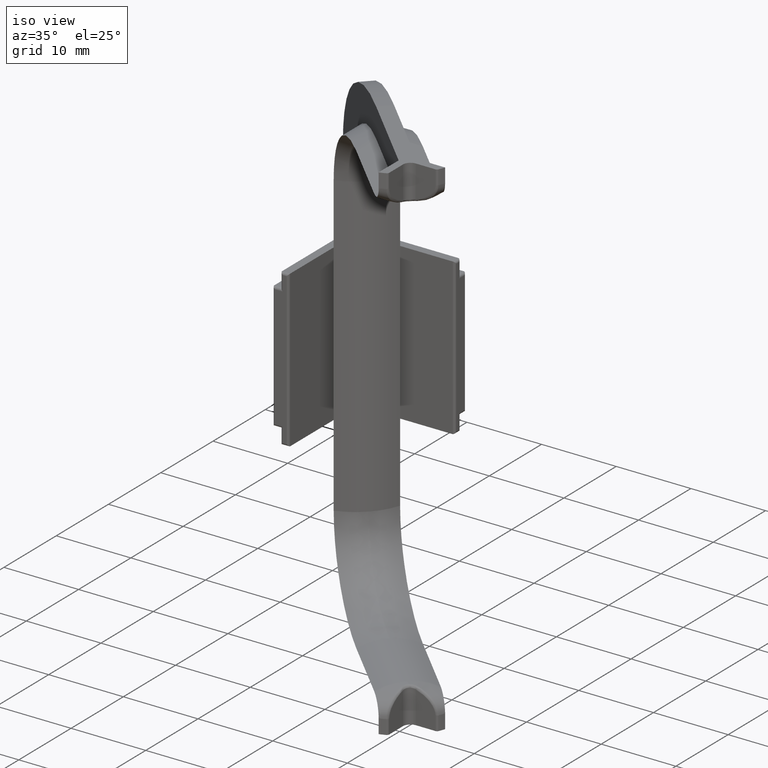
[diagram: clean part render]
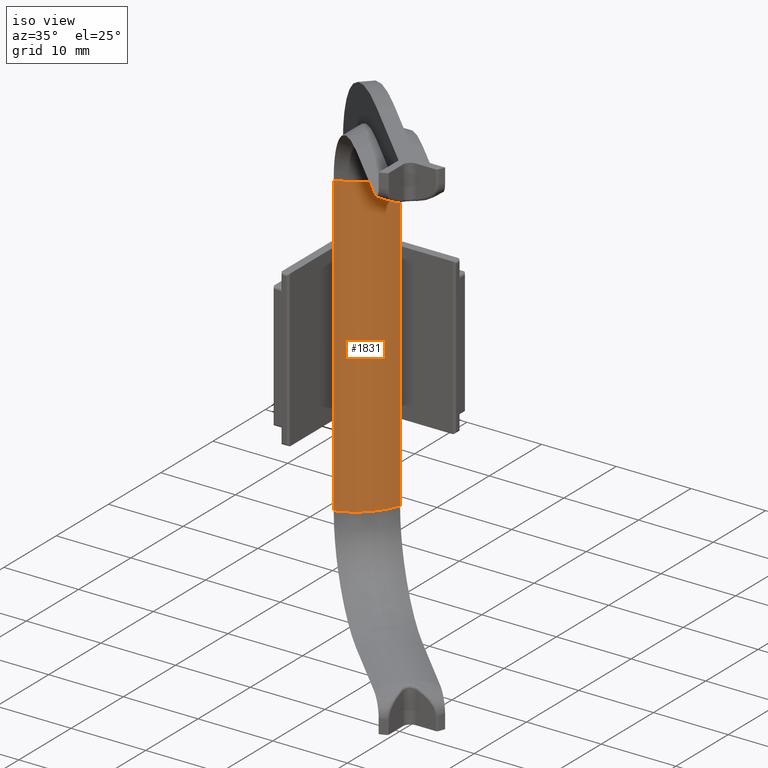
[diagram: same view with one face highlighted and labeled with its STEP entity id]
A machine part, iso view. The second image highlights one B-rep face of the part: STEP entity #1831.
In plain terms, the highlighted cylindrical surface (partial cylindrical patch) has radius 8 mm, axis along (0, 0, -1).
Its self-contained STEP definition (entity closure, byte-faithful):
#258=FACE_OUTER_BOUND('',#367,.T.);
#367=EDGE_LOOP('',(#1661,#1662,#1663,#1664,#1665,#1666));
#513=LINE('',#3539,#658);
#514=LINE('',#3605,#659);
#658=VECTOR('',#2538,10.);
#659=VECTOR('',#2549,10.);
#697=CIRCLE('',#2031,8.);
#698=CIRCLE('',#2033,8.);
#700=CIRCLE('',#2036,8.);
#701=CIRCLE('',#2039,8.);
#848=VERTEX_POINT('',#3416);
#851=VERTEX_POINT('',#3432);
#856=VERTEX_POINT('',#3459);
#862=VERTEX_POINT('',#3485);
#866=VERTEX_POINT('',#3530);
#867=VERTEX_POINT('',#3568);
#1128=EDGE_CURVE('',#848,#866,#697,.T.);
#1130=EDGE_CURVE('',#851,#848,#513,.T.);
#1131=EDGE_CURVE('',#851,#867,#698,.T.);
#1134=EDGE_CURVE('',#862,#866,#700,.T.);
#1135=EDGE_CURVE('',#856,#862,#514,.T.);
#1136=EDGE_CURVE('',#856,#867,#701,.T.);
#1661=ORIENTED_EDGE('',*,*,#1134,.T.);
#1662=ORIENTED_EDGE('',*,*,#1128,.F.);
#1663=ORIENTED_EDGE('',*,*,#1130,.F.);
#1664=ORIENTED_EDGE('',*,*,#1131,.T.);
#1665=ORIENTED_EDGE('',*,*,#1136,.F.);
#1666=ORIENTED_EDGE('',*,*,#1135,.T.);
#1726=CYLINDRICAL_SURFACE('',#2038,8.);
#1831=ADVANCED_FACE('',(#258),#1726,.T.);
#2031=AXIS2_PLACEMENT_3D('',#3531,#2534,#2535);
#2033=AXIS2_PLACEMENT_3D('',#3569,#2539,#2540);
#2036=AXIS2_PLACEMENT_3D('',#3603,#2545,#2546);
#2038=AXIS2_PLACEMENT_3D('',#3606,#2550,#2551);
#2039=AXIS2_PLACEMENT_3D('',#3607,#2552,#2553);
#2534=DIRECTION('center_axis',(9.21988533758605E-17,-2.58732307069634E-16,
-1.));
#2535=DIRECTION('ref_axis',(0.953971392447547,-0.29989761984999,1.34792097789497E-16));
#2538=DIRECTION('',(-5.55111512312578E-17,-5.55111512312578E-17,-1.));
#2539=DIRECTION('center_axis',(9.21988533758605E-17,-2.58732307069634E-16,
-1.));
#2540=DIRECTION('ref_axis',(0.953971392447547,-0.29989761984999,1.34792097789497E-16));
#2545=DIRECTION('center_axis',(-2.03221155838376E-16,1.47710004607118E-16,
1.));
#2546=DIRECTION('ref_axis',(0.29989761984999,-0.953971392447547,1.71100485896559E-16));
#2549=DIRECTION('',(0.,0.,-1.));
#2550=DIRECTION('center_axis',(0.,0.,-1.));
#2551=DIRECTION('ref_axis',(0.29989761984999,-0.953971392447547,0.));
#2552=DIRECTION('center_axis',(-2.03221155838376E-16,1.47710004607118E-16,
1.));
#2553=DIRECTION('ref_axis',(0.29989761984999,-0.953971392447547,1.71100485896559E-16));
#3416=CARTESIAN_POINT('',(5.13259018078045,51.3325901807804,-20.));
#3432=CARTESIAN_POINT('',(5.13259018078045,51.3325901807804,20.));
#3459=CARTESIAN_POINT('',(-0.0999999999999912,46.1,20.));
#3485=CARTESIAN_POINT('',(-0.0999999999999912,46.1,-20.));
#3530=CARTESIAN_POINT('',(3.15767329069247,48.074916890088,-20.));
#3531=CARTESIAN_POINT('Origin',(-2.49918095879994,53.7317711395804,-20.));
#3539=CARTESIAN_POINT('',(5.13259018078045,51.3325901807804,20.));
#3568=CARTESIAN_POINT('',(3.15767329069247,48.074916890088,20.));
#3569=CARTESIAN_POINT('Origin',(-2.49918095879994,53.7317711395804,20.));
#3603=CARTESIAN_POINT('Origin',(-2.49918095879991,53.7317711395804,-20.));
#3605=CARTESIAN_POINT('',(-0.0999999999999912,46.1,20.));
#3606=CARTESIAN_POINT('Origin',(-2.49918095879991,53.7317711395804,20.));
#3607=CARTESIAN_POINT('Origin',(-2.49918095879991,53.7317711395804,20.));